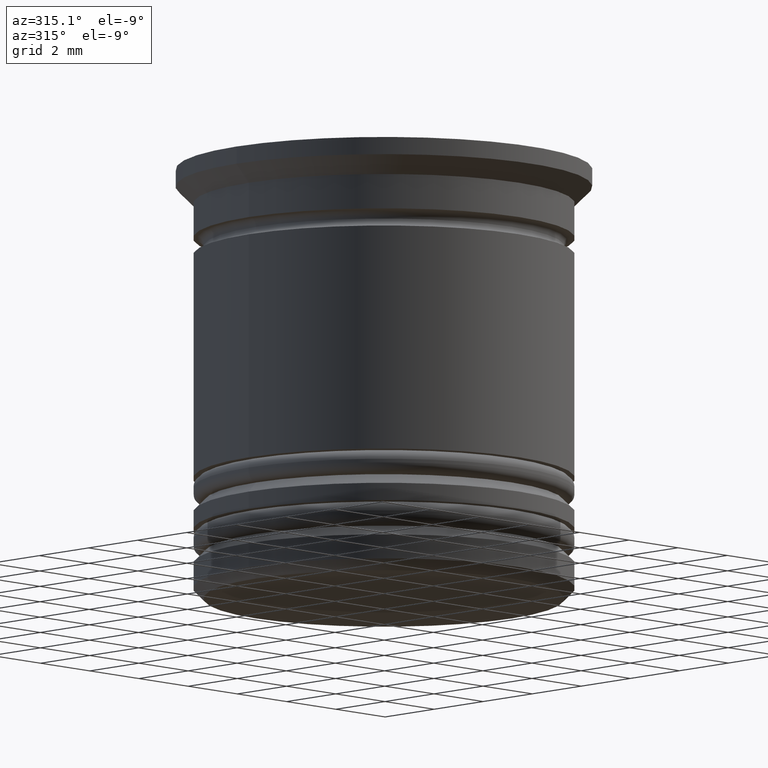
[diagram: clean part render]
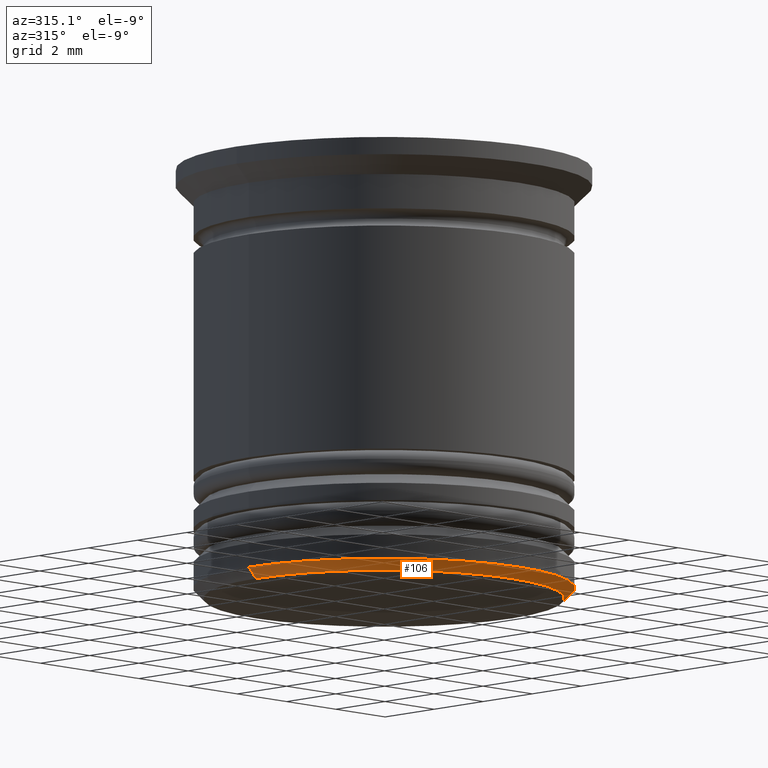
[diagram: same view with one face highlighted and labeled with its STEP entity id]
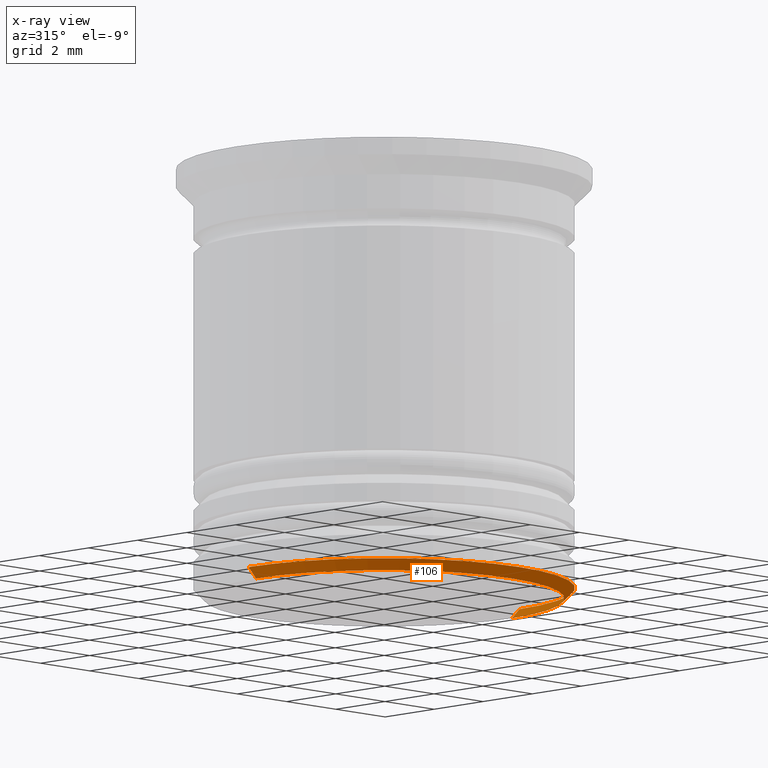
[diagram: x-ray of the same camera — body ghosted, the highlighted face saturated]
A machine part, auxiliary view. The second image highlights one B-rep face of the part: STEP entity #106.
The next image is the same camera in x-ray: the body ghosted, the highlighted face saturated — about 0% of this face is hidden behind the body in this view.
In plain terms, the highlighted conical surface has half-angle 45 deg.
Its self-contained STEP definition (entity closure, byte-faithful):
#106 = ADVANCED_FACE ( 'NONE', ( #1732 ), #1422, .T. ) ;
#111 = CARTESIAN_POINT ( 'NONE',  ( 5.500000000000001776, 0.000000000000000000, -12.19999999999999574 ) ) ;
#153 = CARTESIAN_POINT ( 'NONE',  ( 0.000000000000000000, 0.000000000000000000, -12.50000000000000000 ) ) ;
#190 = CARTESIAN_POINT ( 'NONE',  ( 0.000000000000000000, 0.000000000000000000, -12.19999999999999574 ) ) ;
#236 = VERTEX_POINT ( 'NONE', #111 ) ;
#276 = EDGE_CURVE ( 'NONE', #693, #236, #549, .T. ) ;
#310 = ORIENTED_EDGE ( 'NONE', *, *, #276, .T. ) ;
#321 = AXIS2_PLACEMENT_3D ( 'NONE', #1223, #1719, #1839 ) ;
#324 = AXIS2_PLACEMENT_3D ( 'NONE', #153, #1658, #757 ) ;
#549 = LINE ( 'NONE', #730, #689 ) ;
#596 = DIRECTION ( 'NONE',  ( -0.7071067811865475727, 8.659560562354931626E-17, 0.7071067811865474617 ) ) ;
#673 = DIRECTION ( 'NONE',  ( -0.000000000000000000, -0.000000000000000000, 1.000000000000000000 ) ) ;
#689 = VECTOR ( 'NONE', #1344, 1000.000000000000000 ) ;
#693 = VERTEX_POINT ( 'NONE', #1700 ) ;
#730 = CARTESIAN_POINT ( 'NONE',  ( 5.500000000000001776, 0.000000000000000000, -12.19999999999999574 ) ) ;
#737 = LINE ( 'NONE', #1650, #1330 ) ;
#757 = DIRECTION ( 'NONE',  ( -1.000000000000000000, 0.000000000000000000, 0.000000000000000000 ) ) ;
#983 = VERTEX_POINT ( 'NONE', #1085 ) ;
#1084 = VERTEX_POINT ( 'NONE', #1178 ) ;
#1085 = CARTESIAN_POINT ( 'NONE',  ( -5.199999999999996625, 6.551860375438336737E-16, -12.50000000000000000 ) ) ;
#1178 = CARTESIAN_POINT ( 'NONE',  ( -5.500000000000001776, 6.735557395310443995E-16, -12.19999999999999574 ) ) ;
#1212 = EDGE_CURVE ( 'NONE', #1084, #236, #1421, .T. ) ;
#1223 = CARTESIAN_POINT ( 'NONE',  ( 0.000000000000000000, 0.000000000000000000, -12.19999999999999574 ) ) ;
#1330 = VECTOR ( 'NONE', #596, 1000.000000000000000 ) ;
#1344 = DIRECTION ( 'NONE',  ( 0.7071067811865475727, 0.000000000000000000, 0.7071067811865474617 ) ) ;
#1367 = ORIENTED_EDGE ( 'NONE', *, *, #1212, .F. ) ;
#1421 = CIRCLE ( 'NONE', #321, 5.500000000000001776 ) ;
#1422 = CONICAL_SURFACE ( 'NONE', #1709, 5.500000000000001776, 0.7853981633974482790 ) ;
#1506 = EDGE_CURVE ( 'NONE', #693, #983, #1935, .T. ) ;
#1539 = ORIENTED_EDGE ( 'NONE', *, *, #1605, .F. ) ;
#1605 = EDGE_CURVE ( 'NONE', #983, #1084, #737, .T. ) ;
#1609 = DIRECTION ( 'NONE',  ( 1.000000000000000000, 0.000000000000000000, 0.000000000000000000 ) ) ;
#1650 = CARTESIAN_POINT ( 'NONE',  ( -5.500000000000001776, 6.735557395310443009E-16, -12.19999999999999574 ) ) ;
#1658 = DIRECTION ( 'NONE',  ( 0.000000000000000000, 0.000000000000000000, -1.000000000000000000 ) ) ;
#1700 = CARTESIAN_POINT ( 'NONE',  ( 5.199999999999996625, 0.000000000000000000, -12.50000000000000000 ) ) ;
#1709 = AXIS2_PLACEMENT_3D ( 'NONE', #190, #673, #1609 ) ;
#1719 = DIRECTION ( 'NONE',  ( -0.000000000000000000, -0.000000000000000000, 1.000000000000000000 ) ) ;
#1732 = FACE_OUTER_BOUND ( 'NONE', #1832, .T. ) ;
#1832 = EDGE_LOOP ( 'NONE', ( #1539, #1942, #310, #1367 ) ) ;
#1839 = DIRECTION ( 'NONE',  ( -1.000000000000000000, 0.000000000000000000, 0.000000000000000000 ) ) ;
#1935 = CIRCLE ( 'NONE', #324, 5.199999999999996625 ) ;
#1942 = ORIENTED_EDGE ( 'NONE', *, *, #1506, .F. ) ;